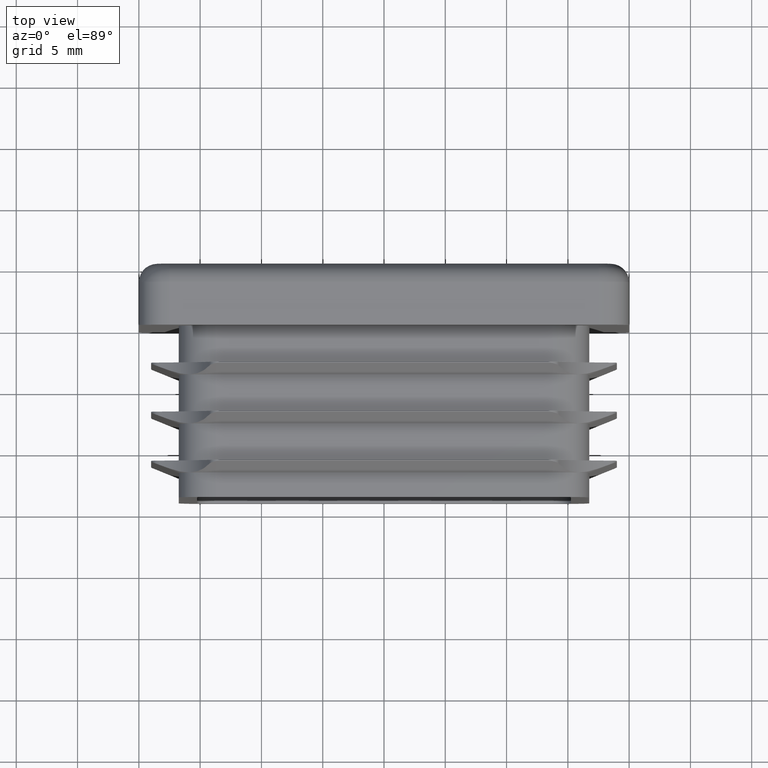
[diagram: clean part render]
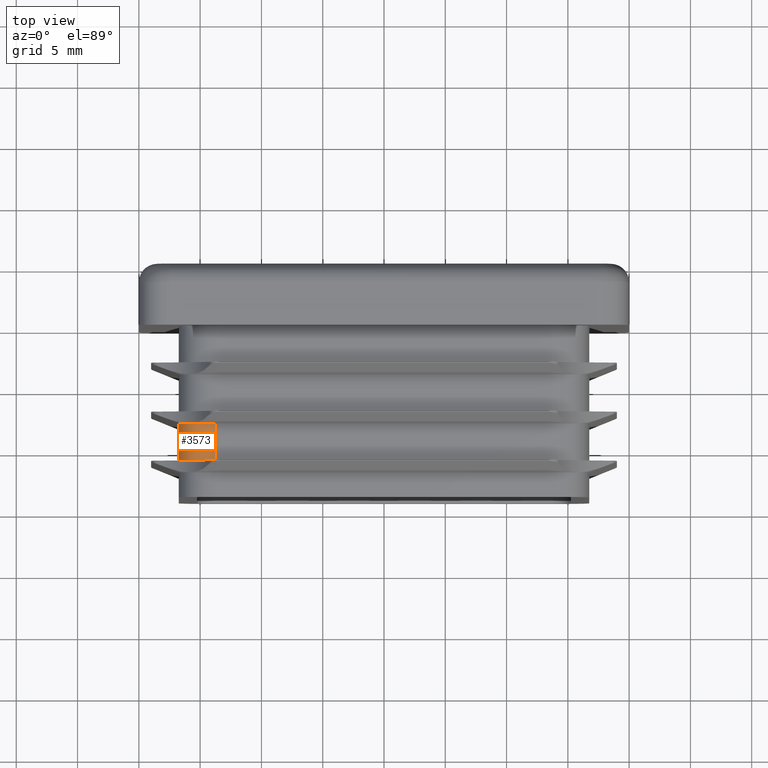
[diagram: same view with one face highlighted and labeled with its STEP entity id]
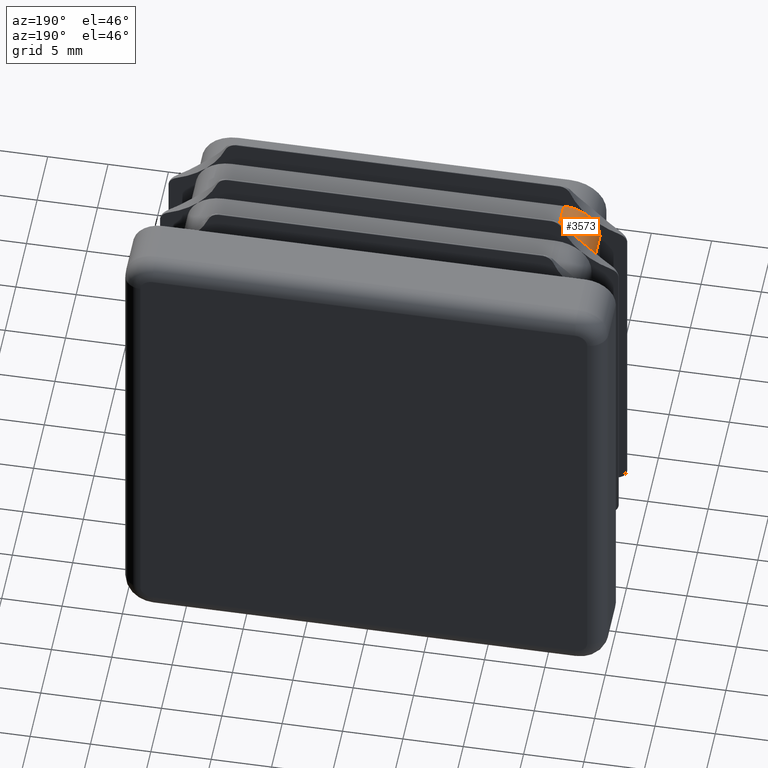
[diagram: same view with one face highlighted and labeled with its STEP entity id]
A machine part, top view. The second image highlights one B-rep face of the part: STEP entity #3573.
A second angle (auxiliary view) of the same face is appended — the face is thin or edge-on in the first view.
In plain terms, the highlighted cylindrical surface (partial cylindrical patch) has radius 3 mm, axis along (-0, 1, -0).
Its self-contained STEP definition (entity closure, byte-faithful):
#12 = CARTESIAN_POINT ( 'NONE',  ( -13.75000000000000888, -8.000000000000000000, 13.75000000000000533 ) ) ;
#334 = VERTEX_POINT ( 'NONE', #787 ) ;
#431 = CIRCLE ( 'NONE', #1076, 3.000000000000037303 ) ;
#553 = LINE ( 'NONE', #2970, #15754 ) ;
#787 = CARTESIAN_POINT ( 'NONE',  ( -13.75000000000000888, -8.000000000000014211, 16.75000000000000355 ) ) ;
#827 = DIRECTION ( 'NONE',  ( 0.000000000000000000, 1.000000000000000000, 0.000000000000000000 ) ) ;
#1076 = AXIS2_PLACEMENT_3D ( 'NONE', #13526, #18306, #16595 ) ;
#1230 = CARTESIAN_POINT ( 'NONE',  ( -13.75000000000000888, -11.00000000000000000, 13.75000000000000533 ) ) ;
#1381 = VERTEX_POINT ( 'NONE', #11661 ) ;
#1438 = DIRECTION ( 'NONE',  ( -0.000000000000000000, 1.000000000000000000, -0.000000000000000000 ) ) ;
#2684 = FACE_OUTER_BOUND ( 'NONE', #10738, .T. ) ;
#2970 = CARTESIAN_POINT ( 'NONE',  ( -13.75000000000000888, -14.00000000000000000, 16.75000000000000355 ) ) ;
#3573 = ADVANCED_FACE ( 'NONE', ( #2684 ), #16371, .T. ) ;
#3629 = CIRCLE ( 'NONE', #14428, 3.000000000000079048 ) ;
#4251 = DIRECTION ( 'NONE',  ( 0.000000000000000000, 1.000000000000000000, 0.000000000000000000 ) ) ;
#4454 = DIRECTION ( 'NONE',  ( -1.000000000000000000, 0.000000000000000000, 0.000000000000000000 ) ) ;
#4481 = VERTEX_POINT ( 'NONE', #8880 ) ;
#4626 = CARTESIAN_POINT ( 'NONE',  ( -16.75000000000000355, -11.00000000000000000, 13.75000000000000533 ) ) ;
#4826 = VERTEX_POINT ( 'NONE', #11550 ) ;
#5995 = ORIENTED_EDGE ( 'NONE', *, *, #16686, .T. ) ;
#6059 = ORIENTED_EDGE ( 'NONE', *, *, #17626, .F. ) ;
#6487 = DIRECTION ( 'NONE',  ( 0.000000000000000000, 1.000000000000000000, 0.000000000000000000 ) ) ;
#7331 = ORIENTED_EDGE ( 'NONE', *, *, #7903, .F. ) ;
#7358 = ORIENTED_EDGE ( 'NONE', *, *, #9644, .T. ) ;
#7572 = LINE ( 'NONE', #20028, #19216 ) ;
#7903 = EDGE_CURVE ( 'NONE', #4826, #14765, #10021, .T. ) ;
#8251 = CARTESIAN_POINT ( 'NONE',  ( -13.75000000000000888, -14.00000000000000000, 13.75000000000000533 ) ) ;
#8573 = AXIS2_PLACEMENT_3D ( 'NONE', #8251, #14657, #19328 ) ;
#8839 = VERTEX_POINT ( 'NONE', #4626 ) ;
#8880 = CARTESIAN_POINT ( 'NONE',  ( -13.75000000000000888, -11.00000000000000000, 16.75000000000000355 ) ) ;
#9644 = EDGE_CURVE ( 'NONE', #4481, #334, #553, .T. ) ;
#10021 = CIRCLE ( 'NONE', #10705, 3.000000000000037303 ) ;
#10705 = AXIS2_PLACEMENT_3D ( 'NONE', #12, #6487, #17649 ) ;
#10738 = EDGE_LOOP ( 'NONE', ( #12181, #7331, #6059, #5995, #12653, #7358 ) ) ;
#11044 = CIRCLE ( 'NONE', #20386, 3.000000000000079048 ) ;
#11550 = CARTESIAN_POINT ( 'NONE',  ( -16.75000000000000355, -8.000000000000015987, 13.75000000000000533 ) ) ;
#11661 = CARTESIAN_POINT ( 'NONE',  ( -15.87132034355967569, -11.00000000000000000, 15.87132034355973786 ) ) ;
#12181 = ORIENTED_EDGE ( 'NONE', *, *, #14808, .F. ) ;
#12653 = ORIENTED_EDGE ( 'NONE', *, *, #16613, .T. ) ;
#13526 = CARTESIAN_POINT ( 'NONE',  ( -13.75000000000000888, -8.000000000000000000, 13.75000000000000533 ) ) ;
#14428 = AXIS2_PLACEMENT_3D ( 'NONE', #1230, #4251, #4454 ) ;
#14657 = DIRECTION ( 'NONE',  ( -0.000000000000000000, 1.000000000000000000, -0.000000000000000000 ) ) ;
#14765 = VERTEX_POINT ( 'NONE', #16800 ) ;
#14808 = EDGE_CURVE ( 'NONE', #14765, #334, #431, .T. ) ;
#15455 = DIRECTION ( 'NONE',  ( -0.000000000000000000, 1.000000000000000000, -0.000000000000000000 ) ) ;
#15754 = VECTOR ( 'NONE', #1438, 1000.000000000000000 ) ;
#16371 = CYLINDRICAL_SURFACE ( 'NONE', #8573, 2.999999999999999112 ) ;
#16595 = DIRECTION ( 'NONE',  ( -1.000000000000000000, 0.000000000000000000, 0.000000000000000000 ) ) ;
#16613 = EDGE_CURVE ( 'NONE', #1381, #4481, #11044, .T. ) ;
#16686 = EDGE_CURVE ( 'NONE', #8839, #1381, #3629, .T. ) ;
#16800 = CARTESIAN_POINT ( 'NONE',  ( -15.87132034355960641, -8.000000000000023093, 15.87132034355966859 ) ) ;
#17626 = EDGE_CURVE ( 'NONE', #8839, #4826, #7572, .T. ) ;
#17649 = DIRECTION ( 'NONE',  ( -1.000000000000000000, 0.000000000000000000, 0.000000000000000000 ) ) ;
#18254 = DIRECTION ( 'NONE',  ( -1.000000000000000000, 0.000000000000000000, 0.000000000000000000 ) ) ;
#18306 = DIRECTION ( 'NONE',  ( 0.000000000000000000, 1.000000000000000000, 0.000000000000000000 ) ) ;
#19216 = VECTOR ( 'NONE', #15455, 1000.000000000000000 ) ;
#19328 = DIRECTION ( 'NONE',  ( 0.000000000000000000, 0.000000000000000000, 1.000000000000000000 ) ) ;
#19867 = CARTESIAN_POINT ( 'NONE',  ( -13.75000000000000888, -11.00000000000000000, 13.75000000000000533 ) ) ;
#20028 = CARTESIAN_POINT ( 'NONE',  ( -16.75000000000000355, -14.00000000000000000, 13.75000000000000533 ) ) ;
#20386 = AXIS2_PLACEMENT_3D ( 'NONE', #19867, #827, #18254 ) ;